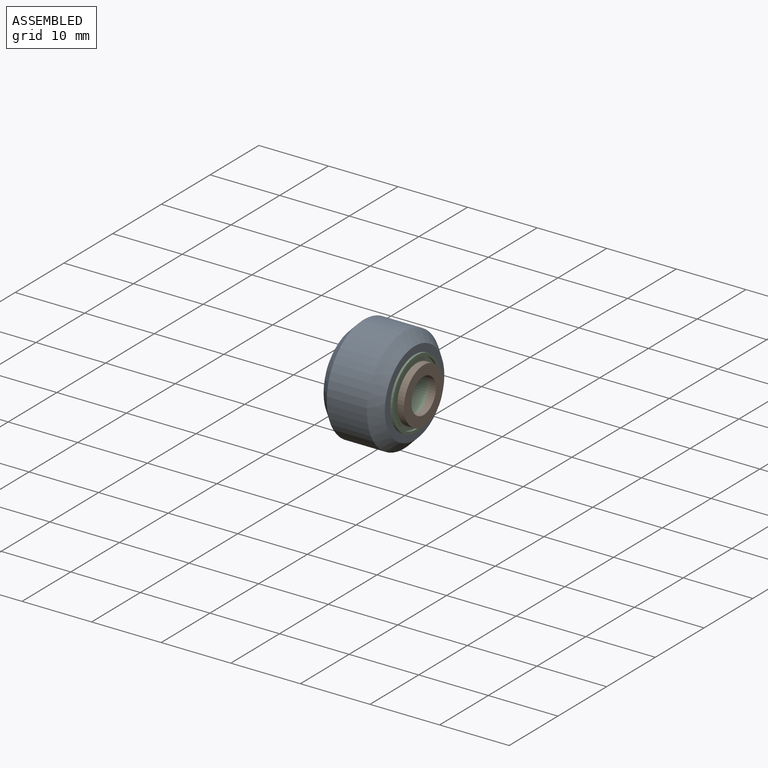
[diagram: assembled view]
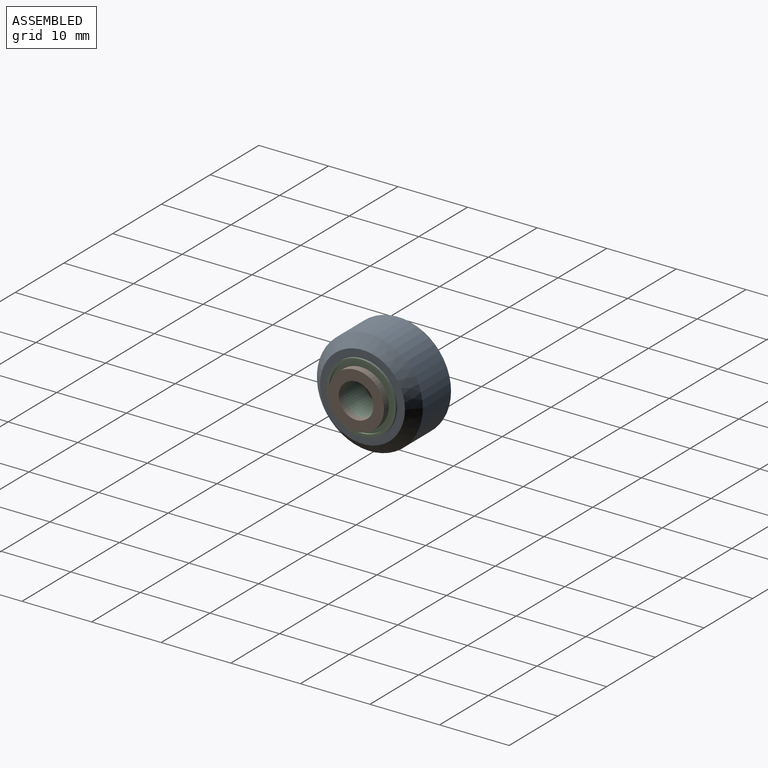
[diagram: assembled view, second angle]
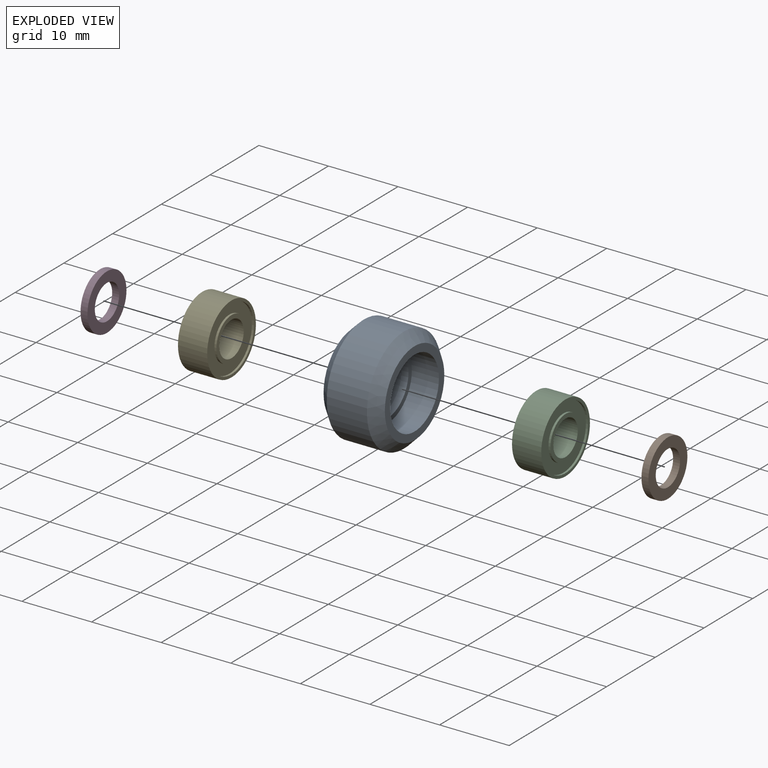
[diagram: exploded view]
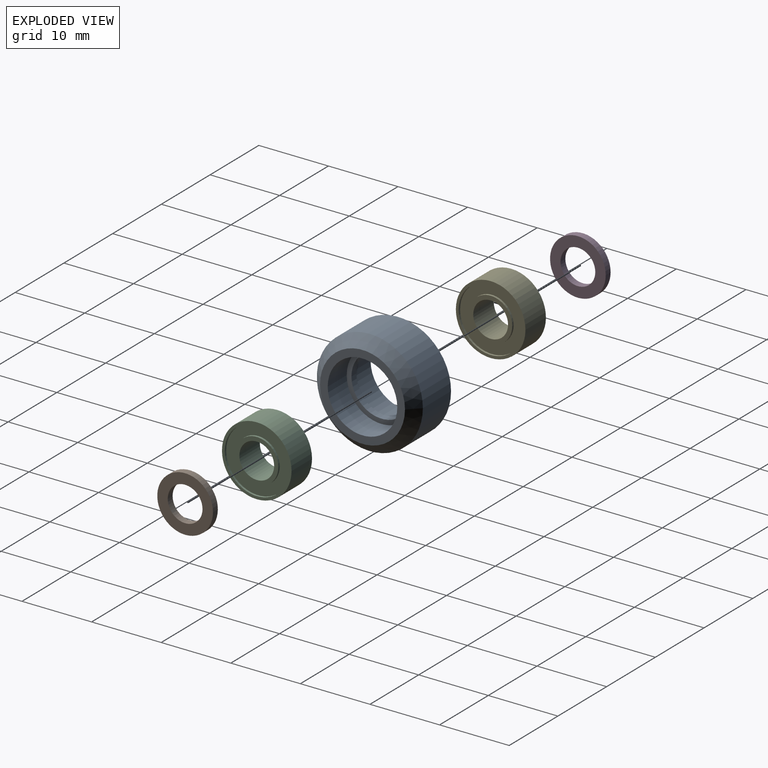
[diagram: exploded view, second angle]
ASSEMBLY  parts=5 mates=4
PART A: 10 faces, bbox 8.8x15.2x15.2 mm
  f0: cylinder r=5mm len=10mm, axis (1,0,0), area 122.5mm2, adj f6,f9
  f1: cone r=7.62mm half-angle=45deg, axis (1,0,0), area 92mm2, adj f2,f9
  f2: cylinder r=7.62mm len=15.23mm, axis (1,0,0), area 276.6mm2, adj f1,f3
  f3: cone r=6.11mm half-angle=45deg, axis (-1,0,0), area 92mm2, adj f2,f8
  f4: cylinder r=5mm len=10mm, axis (1,0,0), area 122.5mm2, adj f7,f8
  f5: cylinder r=4.32mm len=8.64mm, axis (1,0,0), area 27.1mm2, adj f6,f7
  f6: plane 10x10mm, normal (-1,0,0), area 19.9mm2, adj f0,f5
  f7: plane 10x10mm, normal (1,0,0), area 19.9mm2, adj f4,f5
  f8: plane 12.21x12.21mm, normal (1,0,0), area 38.6mm2, adj f3,f4
  f9: plane 12.21x12.21mm, normal (-1,0,0), area 38.6mm2, adj f0,f1
PART B: 4 faces, bbox 8x8x1 mm
  f0: cylinder r=2.5mm len=5mm, axis (0,0,-1), area 15.7mm2, adj f2,f3
  f1: cylinder r=4mm len=8mm, axis (0,0,-1), area 25.1mm2, adj f2,f3
  f2: plane 8x8mm, normal (0,0,1), area 30.6mm2, adj f0,f1
  f3: plane 8x8mm, normal (0,0,-1), area 30.6mm2, adj f0,f1
PART C: 12 faces, bbox 4.2x10x10 mm
  f0: cylinder r=2.5mm len=5mm, axis (1,0,0), area 66mm2, adj f6,f11
  f1: cylinder r=3.1mm len=6.2mm, axis (1,0,0), area 5.8mm2, adj f10,f11
  f2: cylinder r=4.6mm len=9.2mm, axis (1,0,0), area 8.7mm2, adj f9,f10
  f3: cylinder r=5mm len=10mm, axis (1,0,0), area 131.9mm2, adj f8,f9
  f4: cylinder r=4.6mm len=9.2mm, axis (1,0,0), area 8.7mm2, adj f7,f8
  f5: cylinder r=3.1mm len=6.2mm, axis (1,0,0), area 5.8mm2, adj f6,f7
  f6: plane 6.2x6.2mm, normal (-1,0,0), area 10.6mm2, adj f0,f5
  f7: plane 9.2x9.2mm, normal (-1,0,0), area 36.3mm2, adj f4,f5
  f8: plane 10x10mm, normal (-1,0,0), area 12.1mm2, adj f3,f4
  f9: plane 10x10mm, normal (1,0,0), area 12.1mm2, adj f2,f3
  f10: plane 9.2x9.2mm, normal (1,0,0), area 36.3mm2, adj f1,f2
  f11: plane 6.2x6.2mm, normal (1,0,0), area 10.6mm2, adj f0,f1
PART D: same geometry as B
PART E: same geometry as C
PLACE A at identity fixed
PLACE B rot(axis=(0.71,0,-0.71),180deg) t=(5.7,0,0)mm
PLACE C t=(2.6,0,0)mm
PLACE D rot(axis=(0.71,0,0.71),180deg) t=(-5.7,0,0)mm
PLACE E t=(-2.6,0,0)mm
MATE revolute B.f0 <-> C.f0  axis (-1,0,0) through (4.7,0,0)mm
MATE revolute E.f0 <-> A.f0  axis (1,0,0) through (-0.5,0,0)mm
MATE revolute C.f0 <-> A.f0  axis (-1,0,0) through (0.5,0,0)mm
MATE revolute D.f0 <-> E.f0  axis (1,0,0) through (-4.7,0,0)mm
